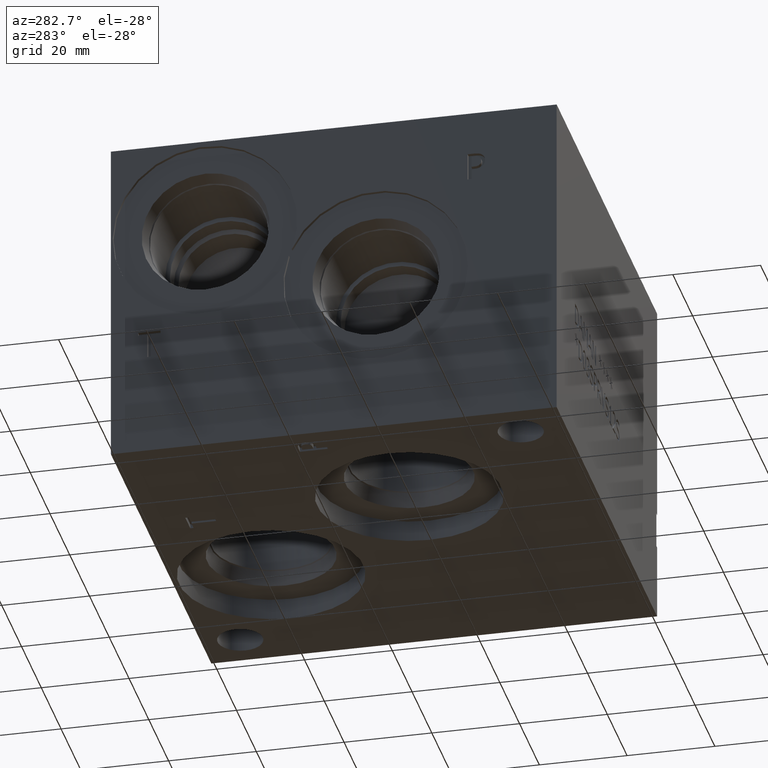
[diagram: clean part render]
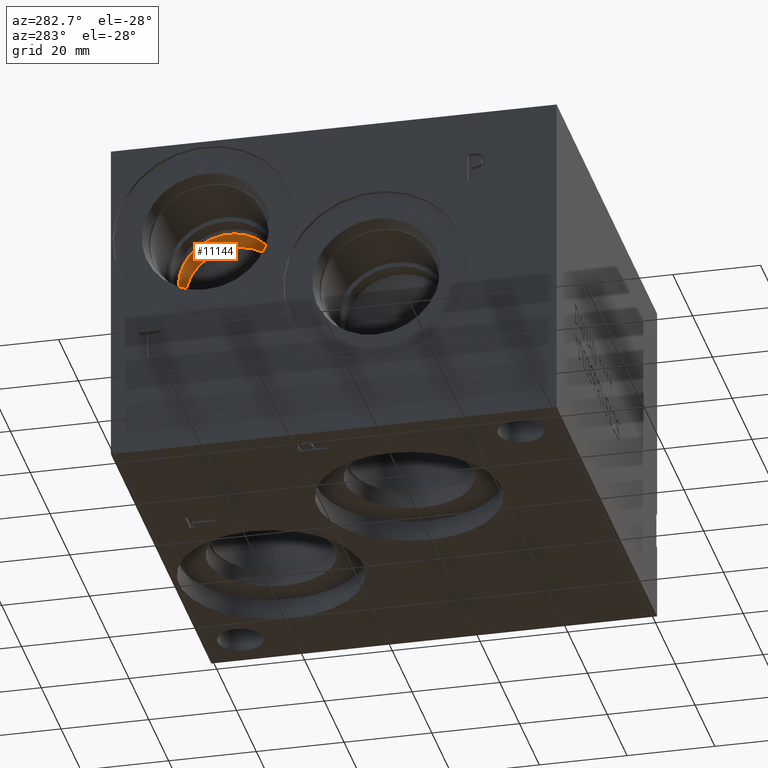
[diagram: same view with one face highlighted and labeled with its STEP entity id]
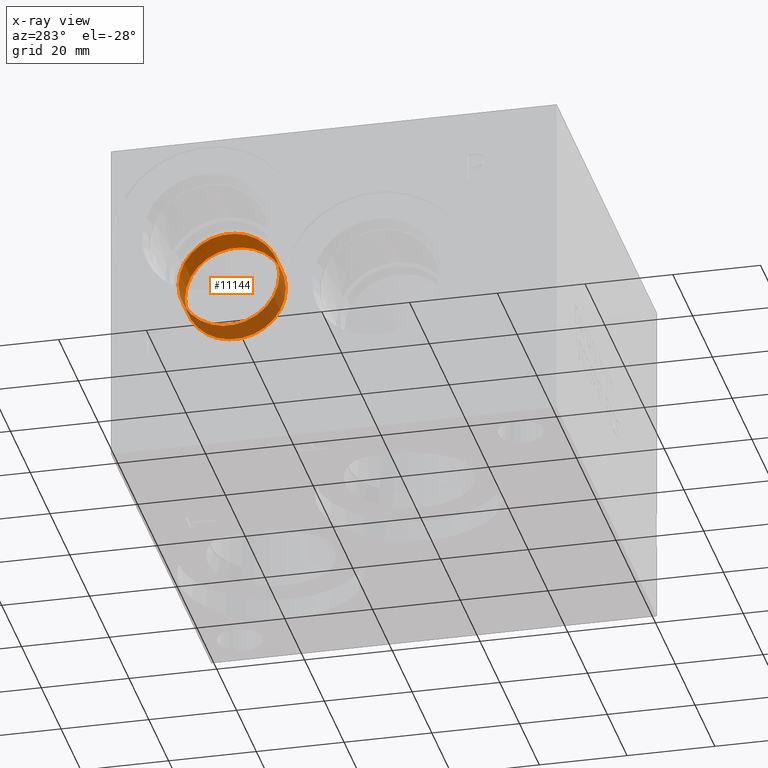
[diagram: x-ray of the same camera — body ghosted, the highlighted face saturated]
A machine part, auxiliary view. The second image highlights one B-rep face of the part: STEP entity #11144.
The next image is the same camera in x-ray: the body ghosted, the highlighted face saturated — about 56% of this face is hidden behind the body in this view.
In plain terms, the highlighted cylindrical surface (bore or boss wall) has radius 11.5062 mm, axis along (-1, 0, 0).
Its self-contained STEP definition (entity closure, byte-faithful):
#82=CYLINDRICAL_SURFACE('',#11691,11.5062);
#218=CIRCLE('',#11689,11.5062);
#219=CIRCLE('',#11690,11.5062);
#220=CIRCLE('',#11692,11.5062);
#1363=FACE_OUTER_BOUND('',#1989,.T.);
#1989=EDGE_LOOP('',(#9578,#9579,#9580,#9581,#9582));
#3065=LINE('',#19045,#4106);
#4106=VECTOR('',#13795,11.5062);
#5106=VERTEX_POINT('',#19036);
#5107=VERTEX_POINT('',#19037);
#5109=VERTEX_POINT('',#19043);
#6627=EDGE_CURVE('',#5106,#5107,#218,.T.);
#6629=EDGE_CURVE('',#5107,#5106,#219,.T.);
#6630=EDGE_CURVE('',#5109,#5109,#220,.T.);
#6631=EDGE_CURVE('',#5109,#5107,#3065,.T.);
#9578=ORIENTED_EDGE('',*,*,#6630,.F.);
#9579=ORIENTED_EDGE('',*,*,#6631,.T.);
#9580=ORIENTED_EDGE('',*,*,#6627,.F.);
#9581=ORIENTED_EDGE('',*,*,#6629,.F.);
#9582=ORIENTED_EDGE('',*,*,#6631,.F.);
#11144=ADVANCED_FACE('',(#1363),#82,.F.);
#11689=AXIS2_PLACEMENT_3D('',#19038,#13786,#13787);
#11690=AXIS2_PLACEMENT_3D('',#19041,#13789,#13790);
#11691=AXIS2_PLACEMENT_3D('',#19042,#13791,#13792);
#11692=AXIS2_PLACEMENT_3D('',#19044,#13793,#13794);
#13786=DIRECTION('center_axis',(-1.,0.,0.));
#13787=DIRECTION('ref_axis',(0.,1.,0.));
#13789=DIRECTION('center_axis',(-1.,0.,0.));
#13790=DIRECTION('ref_axis',(0.,1.,0.));
#13791=DIRECTION('center_axis',(-1.,0.,0.));
#13792=DIRECTION('ref_axis',(0.,1.,0.));
#13793=DIRECTION('center_axis',(1.,0.,0.));
#13794=DIRECTION('ref_axis',(0.,1.,0.));
#13795=DIRECTION('',(1.,0.,0.));
#19036=CARTESIAN_POINT('',(30.85722,91.6686,53.975));
#19037=CARTESIAN_POINT('',(30.85722,68.6562,53.975));
#19038=CARTESIAN_POINT('Origin',(30.85722,80.1624,53.975));
#19041=CARTESIAN_POINT('Origin',(30.85722,80.1624,53.975));
#19042=CARTESIAN_POINT('Origin',(15.42861,80.1624,53.975));
#19043=CARTESIAN_POINT('',(24.2141103227564,68.6562,53.975));
#19044=CARTESIAN_POINT('Origin',(24.2141103227564,80.1624,53.975));
#19045=CARTESIAN_POINT('',(15.42861,68.6562,53.975));